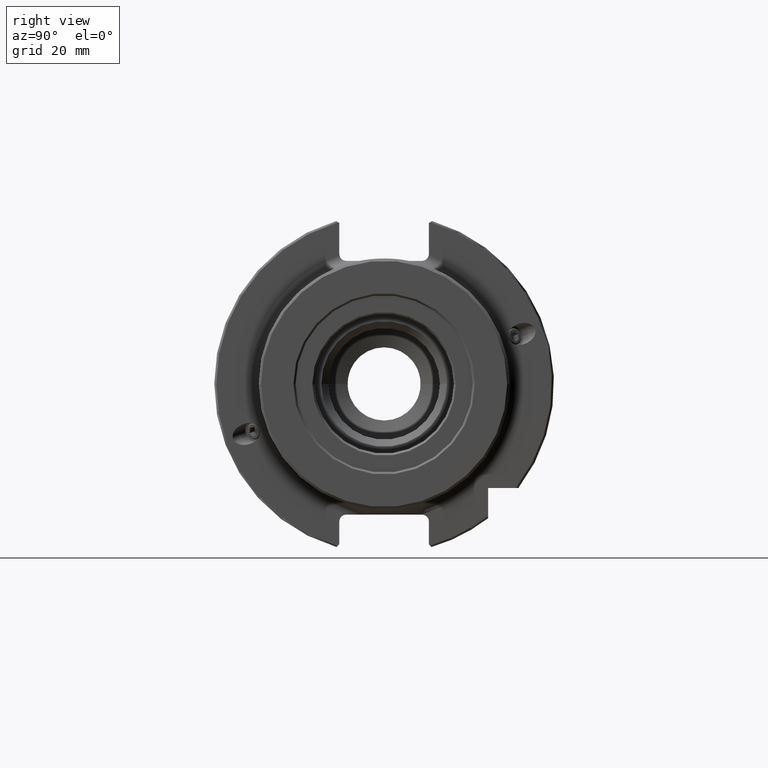
[diagram: clean part render]
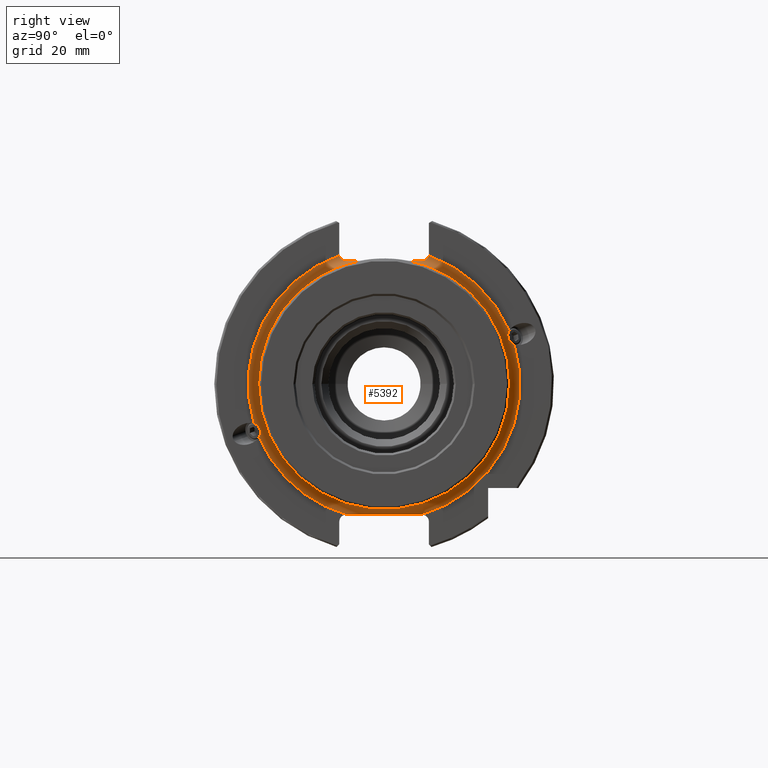
[diagram: same view with one face highlighted and labeled with its STEP entity id]
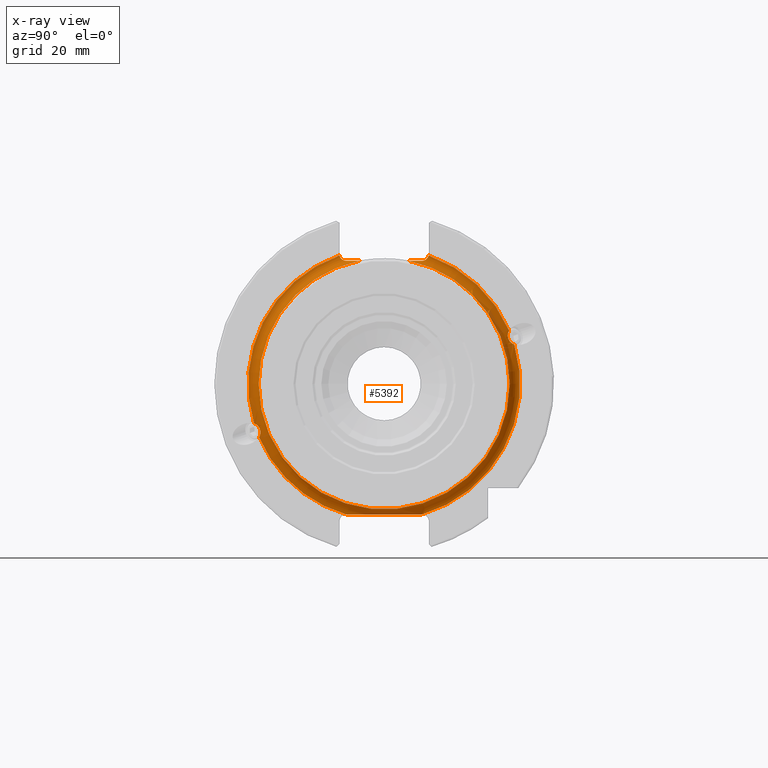
[diagram: x-ray of the same camera — body ghosted, the highlighted face saturated]
A machine part, right view. The second image highlights one B-rep face of the part: STEP entity #5392.
The next image is the same camera in x-ray: the body ghosted, the highlighted face saturated — about 1% of this face is hidden behind the body in this view.
In plain terms, the highlighted toroidal blend (fillet) surface has major radius 39 mm and minor (blend) radius 3 mm.
Its self-contained STEP definition (entity closure, byte-faithful):
#36 = CARTESIAN_POINT ( 'NONE',  ( 22.05000000000000100, 7.064700984471947700, 35.29999999999999700 ) ) ;
#76 = CARTESIAN_POINT ( 'NONE',  ( 19.73104515570625500, 11.26873355218405600, 35.33723913583112600 ) ) ;
#119 = CIRCLE ( 'NONE', #1791, 35.99999999999998600 ) ;
#121 = CARTESIAN_POINT ( 'NONE',  ( 20.70877451986343200, 8.527856312091849100, 35.30000000000000400 ) ) ;
#169 = B_SPLINE_CURVE_WITH_KNOTS ( 'NONE', 3,
 ( #2312, #2337, #3046, #3111, #3170, #3236, #3675, #3733 ),
 .UNSPECIFIED., .F., .F.,
 ( 4, 2, 2, 4 ),
 ( 0.004881689814101739000, 0.005705506230017594300, 0.006117414437975518500, 0.006529322645933443600 ),
 .UNSPECIFIED. ) ;
#186 = CARTESIAN_POINT ( 'NONE',  ( 19.45130184213126900, -0.9339176869112317800, -37.50000000000000700 ) ) ;
#200 = CARTESIAN_POINT ( 'NONE',  ( 20.79012697256431300, 8.358262810116770000, 35.30000000000000400 ) ) ;
#241 = CARTESIAN_POINT ( 'NONE',  ( 20.48017771203776900, -9.040050171712595200, 35.30000000000000400 ) ) ;
#254 = CARTESIAN_POINT ( 'NONE',  ( 19.20653572041700500, 35.48227234995950900, 13.72309931540323700 ) ) ;
#268 = CIRCLE ( 'NONE', #1016, 38.99999999999998600 ) ;
#279 = CARTESIAN_POINT ( 'NONE',  ( 19.12650571033160000, -36.46415845536999000, -11.78726292775055700 ) ) ;
#281 = CARTESIAN_POINT ( 'NONE',  ( 20.96713327598625300, 8.026181348234953100, 35.29999999999999000 ) ) ;
#333 = CIRCLE ( 'NONE', #967, 38.99999999999998600 ) ;
#360 = CARTESIAN_POINT ( 'NONE',  ( 21.06286635511410700, 7.863121613331336400, 35.29999999999999700 ) ) ;
#365 = EDGE_CURVE ( 'NONE', #4197, #565, #268, .T. ) ;
#376 = ORIENTED_EDGE ( 'NONE', *, *, #5620, .F. ) ;
#378 = ORIENTED_EDGE ( 'NONE', *, *, #2847, .F. ) ;
#445 = ORIENTED_EDGE ( 'NONE', *, *, #724, .T. ) ;
#453 = CARTESIAN_POINT ( 'NONE',  ( 19.21902509310479700, 35.49360583889371400, 13.59085756760403500 ) ) ;
#460 = CARTESIAN_POINT ( 'NONE',  ( 19.19369362144939500, -12.37965694284397100, 36.00757904782580700 ) ) ;
#477 = CARTESIAN_POINT ( 'NONE',  ( 21.27691291971389000, 7.555264025089662100, 35.29999999999999000 ) ) ;
#495 = CARTESIAN_POINT ( 'NONE',  ( 19.26809933868107500, -12.22449439711354600, 35.84461297807070000 ) ) ;
#511 = EDGE_CURVE ( 'NONE', #1029, #5366, #4833, .T. ) ;
#560 = DIRECTION ( 'NONE',  ( -1.000000000000000000, -0.0000000000000000000, -0.0000000000000000000 ) ) ;
#561 = CARTESIAN_POINT ( 'NONE',  ( 19.88783453235046000, 10.81760293671390200, 35.29999999999999700 ) ) ;
#565 = VERTEX_POINT ( 'NONE', #3123 ) ;
#576 = EDGE_CURVE ( 'NONE', #2656, #2056, #3546, .T. ) ;
#585 = ORIENTED_EDGE ( 'NONE', *, *, #5575, .T. ) ;
#594 = CARTESIAN_POINT ( 'NONE',  ( 19.05000000000000100, -35.87593687478239000, -15.29435037380234900 ) ) ;
#626 = EDGE_CURVE ( 'NONE', #1824, #5633, #3862, .T. ) ;
#663 = ORIENTED_EDGE ( 'NONE', *, *, #576, .F. ) ;
#665 = ORIENTED_EDGE ( 'NONE', *, *, #1748, .F. ) ;
#671 = EDGE_CURVE ( 'NONE', #1978, #4197, #4786, .T. ) ;
#672 = CARTESIAN_POINT ( 'NONE',  ( 19.45105095950258800, 0.4041172251513667800, -37.49999999999998600 ) ) ;
#680 = CARTESIAN_POINT ( 'NONE',  ( 21.39578396129689600, 7.407241288266126500, 35.29999999999999700 ) ) ;
#688 = B_SPLINE_CURVE_WITH_KNOTS ( 'NONE', 3,
 ( #4353, #3891, #5290, #2483, #5712, #2927, #186, #3400, #672, #3903, #1136, #4375, #1593, #4873, #2054, #5306, #2504, #5726 ),
 .UNSPECIFIED., .F., .F.,
 ( 4, 2, 2, 2, 2, 2, 2, 2, 4 ),
 ( 0.06984173313334871000, 0.07522436882890630400, 0.07791568667668510900, 0.08060700452446389900, 0.08127983398640860300, 0.08195266344835330800, 0.08329832237224270300, 0.08598964022002150700, 0.09137227591557910100 ),
 .UNSPECIFIED. ) ;
#690 = CARTESIAN_POINT ( 'NONE',  ( 19.22908211948982400, 35.51479058266797800, 13.45767727296872700 ) ) ;
#719 = CARTESIAN_POINT ( 'NONE',  ( 19.07914593173902400, -12.64522813871774100, 36.38791833077936400 ) ) ;
#722 = CARTESIAN_POINT ( 'NONE',  ( 20.10004905220087300, -10.10006057303305100, 35.29999999999999700 ) ) ;
#724 = EDGE_CURVE ( 'NONE', #5715, #5060, #779, .T. ) ;
#731 = CARTESIAN_POINT ( 'NONE',  ( 19.24211793496912300, 35.57453100629999200, 13.19775849675452600 ) ) ;
#762 = CARTESIAN_POINT ( 'NONE',  ( 19.16091023332267800, -12.45109332957254700, 36.09641272978856800 ) ) ;
#766 = CARTESIAN_POINT ( 'NONE',  ( 19.07884987638873800, -36.80160597479515900, -11.55506005272228400 ) ) ;
#779 = B_SPLINE_CURVE_WITH_KNOTS ( 'NONE', 3,
 ( #4467, #3974, #5034, #4177, #1307, #2568, #495, #460, #762, #719, #2322, #787 ),
 .UNSPECIFIED., .F., .F.,
 ( 4, 2, 2, 2, 2, 4 ),
 ( 3.642919299551294900E-017, 0.0007091191268146065800, 0.001418238253629176700, 0.001772797817036456300, 0.002127357380443735400, 0.002836476507258310100 ),
 .UNSPECIFIED. ) ;
#787 = CARTESIAN_POINT ( 'NONE',  ( 19.05000000000000100, -12.79657976287572100, 36.84084073921710000 ) ) ;
#808 = ORIENTED_EDGE ( 'NONE', *, *, #1934, .F. ) ;
#809 = CARTESIAN_POINT ( 'NONE',  ( 21.85930775724538200, 7.089368932546748600, 35.30000000000000400 ) ) ;
#871 = CARTESIAN_POINT ( 'NONE',  ( 21.68774402808491800, 7.169575499146632500, 35.29999999999999700 ) ) ;
#884 = ORIENTED_EDGE ( 'NONE', *, *, #511, .T. ) ;
#915 = VERTEX_POINT ( 'NONE', #2500 ) ;
#933 = CARTESIAN_POINT ( 'NONE',  ( 21.61097171438339600, 7.223281424933762000, 35.29999999999999700 ) ) ;
#947 = CARTESIAN_POINT ( 'NONE',  ( 19.24518695373853900, 35.61297470631770100, 13.07060203798073100 ) ) ;
#957 = CARTESIAN_POINT ( 'NONE',  ( 21.95413246252043000, 7.064700984471967300, 35.30000000000000400 ) ) ;
#964 = ORIENTED_EDGE ( 'NONE', *, *, #5154, .T. ) ;
#967 = AXIS2_PLACEMENT_3D ( 'NONE', #4955, #4754, #4616 ) ;
#978 = CARTESIAN_POINT ( 'NONE',  ( 19.05000000000000800, 12.76901307554162700, 36.72397332462423200 ) ) ;
#990 = EDGE_CURVE ( 'NONE', #1928, #1978, #169, .T. ) ;
#1016 = AXIS2_PLACEMENT_3D ( 'NONE', #3980, #4020, #4061 ) ;
#1023 = ORIENTED_EDGE ( 'NONE', *, *, #2503, .F. ) ;
#1029 = VERTEX_POINT ( 'NONE', #5080 ) ;
#1060 = CARTESIAN_POINT ( 'NONE',  ( 19.07539774151642900, -35.61613622000696500, -14.82655362190120800 ) ) ;
#1100 = ORIENTED_EDGE ( 'NONE', *, *, #990, .F. ) ;
#1113 = VERTEX_POINT ( 'NONE', #1138 ) ;
#1115 = B_SPLINE_CURVE_WITH_KNOTS ( 'NONE', 3,
 ( #5601, #978, #1457, #4739, #1939, #5195, #2385, #5613, #2828, #76, #3293, #561 ),
 .UNSPECIFIED., .F., .F.,
 ( 4, 2, 2, 2, 2, 4 ),
 ( 0.0000000000000000000, 0.0003546145948412334600, 0.0007092291896824669100, 0.001418458379364922300, 0.002127687569047377400, 0.002836916758729832500 ),
 .UNSPECIFIED. ) ;
#1120 = CARTESIAN_POINT ( 'NONE',  ( 19.24351087344459500, 35.75321881653679400, 12.69726722631182100 ) ) ;
#1136 = CARTESIAN_POINT ( 'NONE',  ( 19.44342164824842500, 1.077125088991923300, -37.50000000000000000 ) ) ;
#1138 = CARTESIAN_POINT ( 'NONE',  ( 19.05000000000000100, -37.31358100309894600, -11.34445559404116300 ) ) ;
#1162 = CARTESIAN_POINT ( 'NONE',  ( 21.86067789450798300, -7.088921904076489300, 35.30000000000000400 ) ) ;
#1163 = ORIENTED_EDGE ( 'NONE', *, *, #671, .F. ) ;
#1184 = CARTESIAN_POINT ( 'NONE',  ( 19.88783453235048900, -10.81760293671376500, 35.29999999999999700 ) ) ;
#1219 = CARTESIAN_POINT ( 'NONE',  ( 19.05000000000000100, -37.18088058982444000, -11.38308572813018500 ) ) ;
#1229 = ORIENTED_EDGE ( 'NONE', *, *, #365, .F. ) ;
#1231 = CARTESIAN_POINT ( 'NONE',  ( 19.07694717281721000, 36.81950383623782800, 11.54537141067427100 ) ) ;
#1253 = EDGE_LOOP ( 'NONE', ( #1518, #1510, #1438, #1229, #1163, #1100, #1023, #964, #884, #808, #665, #663, #585, #445, #378, #376 ) ) ;
#1290 = CARTESIAN_POINT ( 'NONE',  ( 22.05000000000000100, 4.712618113828424800E-015, 0.0000000000000000000 ) ) ;
#1307 = CARTESIAN_POINT ( 'NONE',  ( 19.44351105154462200, -11.87392409409057900, 35.57168951987105000 ) ) ;
#1312 = DIRECTION ( 'NONE',  ( 1.000000000000000000, 0.0000000000000000000, 0.0000000000000000000 ) ) ;
#1317 = CARTESIAN_POINT ( 'NONE',  ( 22.05000000000000100, -7.064700984471945900, 35.29999999999999700 ) ) ;
#1342 = DIRECTION ( 'NONE',  ( 0.0000000000000000000, 0.0000000000000000000, 1.000000000000000000 ) ) ;
#1376 = CARTESIAN_POINT ( 'NONE',  ( 22.05000000000000100, 7.064700984471947700, 35.29999999999999700 ) ) ;
#1438 = ORIENTED_EDGE ( 'NONE', *, *, #4808, .T. ) ;
#1457 = CARTESIAN_POINT ( 'NONE',  ( 19.05710619505162400, 12.73154160218760600, 36.61180160062496500 ) ) ;
#1509 = CARTESIAN_POINT ( 'NONE',  ( 19.17439836698400800, -35.46098004501563800, -14.04681159862118600 ) ) ;
#1510 = ORIENTED_EDGE ( 'NONE', *, *, #626, .F. ) ;
#1518 = ORIENTED_EDGE ( 'NONE', *, *, #5937, .F. ) ;
#1593 = CARTESIAN_POINT ( 'NONE',  ( 19.41701335191201500, 2.198297997430140400, -37.50000000000000000 ) ) ;
#1624 = CARTESIAN_POINT ( 'NONE',  ( 21.61021244276981400, -7.223825582086962300, 35.29999999999999700 ) ) ;
#1748 = EDGE_CURVE ( 'NONE', #2056, #915, #119, .T. ) ;
#1791 = AXIS2_PLACEMENT_3D ( 'NONE', #1290, #1312, #1342 ) ;
#1824 = VERTEX_POINT ( 'NONE', #1971 ) ;
#1854 = CARTESIAN_POINT ( 'NONE',  ( 19.05000000000000100, 37.18580401552078000, 11.38165248018344800 ) ) ;
#1908 = CARTESIAN_POINT ( 'NONE',  ( 20.09959496967313800, 10.10152519376815100, 35.29999999999999700 ) ) ;
#1928 = VERTEX_POINT ( 'NONE', #3334 ) ;
#1934 = EDGE_CURVE ( 'NONE', #915, #5366, #3575, .T. ) ;
#1939 = CARTESIAN_POINT ( 'NONE',  ( 19.10617243935476500, 12.58113869700122200, 36.29191703427992600 ) ) ;
#1971 = CARTESIAN_POINT ( 'NONE',  ( 19.05000000000000100, -10.71214264281422100, -37.50000000000000000 ) ) ;
#1978 = VERTEX_POINT ( 'NONE', #4204 ) ;
#1984 = CARTESIAN_POINT ( 'NONE',  ( 19.24356331029245100, -35.55066600577165300, -13.25340149865321500 ) ) ;
#2050 = AXIS2_PLACEMENT_3D ( 'NONE', #4228, #560, #3793 ) ;
#2054 = CARTESIAN_POINT ( 'NONE',  ( 19.31879237005500700, 4.438963083077006800, -37.50000000000000000 ) ) ;
#2056 = VERTEX_POINT ( 'NONE', #4977 ) ;
#2073 = CARTESIAN_POINT ( 'NONE',  ( 19.05000000000000100, 37.31358100309902400, 11.34445559404095900 ) ) ;
#2085 = CARTESIAN_POINT ( 'NONE',  ( 21.27527888735019000, -7.557274927159396900, 35.29999999999999700 ) ) ;
#2144 = CARTESIAN_POINT ( 'NONE',  ( 19.05000000000000100, -35.87593687478239000, -15.29435037380234900 ) ) ;
#2307 = CARTESIAN_POINT ( 'NONE',  ( 19.05000000000000100, -12.79657976287572100, 36.84084073921710000 ) ) ;
#2312 = CARTESIAN_POINT ( 'NONE',  ( 19.05000000000000100, 35.87593687478252500, 15.29435037380205400 ) ) ;
#2322 = CARTESIAN_POINT ( 'NONE',  ( 19.04999999999999700, -12.74136504799351900, 36.60676107278635500 ) ) ;
#2328 = CARTESIAN_POINT ( 'NONE',  ( 19.05000000000000100, 4.712618113828424800E-015, 0.0000000000000000000 ) ) ;
#2337 = CARTESIAN_POINT ( 'NONE',  ( 19.05000000000000400, 35.72324034002630800, 15.06599047486589700 ) ) ;
#2371 = DIRECTION ( 'NONE',  ( 0.0000000000000000000, 0.0000000000000000000, 1.000000000000000000 ) ) ;
#2379 = CARTESIAN_POINT ( 'NONE',  ( 19.20653572041935300, -36.00203576934517700, -12.29506105716352800 ) ) ;
#2382 = DIRECTION ( 'NONE',  ( -1.000000000000000000, -0.0000000000000000000, -0.0000000000000000000 ) ) ;
#2385 = CARTESIAN_POINT ( 'NONE',  ( 19.26513245782214400, 12.22976790179381000, 35.83723293572755600 ) ) ;
#2431 = CARTESIAN_POINT ( 'NONE',  ( 19.23134636953529200, -35.85042018853182100, -12.51077571920713500 ) ) ;
#2483 = CARTESIAN_POINT ( 'NONE',  ( 19.31597948993200100, -4.489837205777254400, -37.50000000000000000 ) ) ;
#2500 = CARTESIAN_POINT ( 'NONE',  ( 22.05000000000000100, 35.99999999999999300, 0.0000000000000000000 ) ) ;
#2503 = EDGE_CURVE ( 'NONE', #2560, #1928, #5860, .T. ) ;
#2504 = CARTESIAN_POINT ( 'NONE',  ( 19.05000000000000400, 8.917742578258424800, -37.50000000000001400 ) ) ;
#2533 = CARTESIAN_POINT ( 'NONE',  ( 20.96576388616661600, -8.028652497731039600, 35.29999999999999700 ) ) ;
#2560 = VERTEX_POINT ( 'NONE', #3669 ) ;
#2568 = CARTESIAN_POINT ( 'NONE',  ( 19.31014362462935100, -12.13996195261892000, 35.76994747475323100 ) ) ;
#2656 = VERTEX_POINT ( 'NONE', #1317 ) ;
#2828 = CARTESIAN_POINT ( 'NONE',  ( 19.54195193534343400, 11.68081508412594400, 35.47292394063466500 ) ) ;
#2847 = EDGE_CURVE ( 'NONE', #1113, #5060, #333, .T. ) ;
#2927 = CARTESIAN_POINT ( 'NONE',  ( 19.43168326377449200, -1.823167389604359000, -37.50000000000000000 ) ) ;
#2959 = B_SPLINE_CURVE_WITH_KNOTS ( 'NONE', 3,
 ( #3932, #3435, #1162, #4408, #1624, #4897, #2085, #5341, #2533, #5750, #2975, #241, #3455, #722, #3957, #1184 ),
 .UNSPECIFIED., .F., .F.,
 ( 4, 2, 2, 2, 2, 2, 2, 4 ),
 ( 0.02890446490870409600, 0.02918338306207835300, 0.02946230121545261000, 0.03002013752220112500, 0.03057797382894963900, 0.03113581013569815400, 0.03225148274919518300, 0.03336715536269221200 ),
 .UNSPECIFIED. ) ;
#2975 = CARTESIAN_POINT ( 'NONE',  ( 20.70909718134496600, -8.527214846844794100, 35.29999999999999700 ) ) ;
#3017 = CARTESIAN_POINT ( 'NONE',  ( 19.14446382326842800, -36.35943888002288600, -11.87888942875395400 ) ) ;
#3024 = CARTESIAN_POINT ( 'NONE',  ( 19.09100007771082000, 36.70629015434208500, 11.61246337358449100 ) ) ;
#3046 = CARTESIAN_POINT ( 'NONE',  ( 19.07732314850978400, 35.60800206745044200, 14.80822727855991700 ) ) ;
#3111 = CARTESIAN_POINT ( 'NONE',  ( 19.12651302069177500, 35.50983996911855200, 14.40907207460345600 ) ) ;
#3123 = CARTESIAN_POINT ( 'NONE',  ( 19.05000000000000100, 10.71214264281423200, -37.50000000000000000 ) ) ;
#3170 = CARTESIAN_POINT ( 'NONE',  ( 19.14445383619937500, 35.48857297865868100, 14.27170594377830400 ) ) ;
#3236 = CARTESIAN_POINT ( 'NONE',  ( 19.17799371908275700, 35.46905447338968300, 13.99722300907291100 ) ) ;
#3293 = CARTESIAN_POINT ( 'NONE',  ( 19.82279896000449400, 11.04837291280138900, 35.29999999999999000 ) ) ;
#3321 = CARTESIAN_POINT ( 'NONE',  ( 19.05000000000000100, -35.72876369488533000, -15.07425073276551200 ) ) ;
#3334 = CARTESIAN_POINT ( 'NONE',  ( 19.05000000000000100, 35.87593687478252500, 15.29435037380205400 ) ) ;
#3400 = CARTESIAN_POINT ( 'NONE',  ( 19.45206038543434000, 0.1780956272296395400, -37.49999999999999300 ) ) ;
#3435 = CARTESIAN_POINT ( 'NONE',  ( 21.95456912785968500, -7.064700984472001000, 35.30000000000000400 ) ) ;
#3455 = CARTESIAN_POINT ( 'NONE',  ( 20.34547096287003500, -9.391859453161194100, 35.29999999999999700 ) ) ;
#3498 = CARTESIAN_POINT ( 'NONE',  ( 19.09378859890480500, -36.68478287443759500, -11.62584951962497100 ) ) ;
#3546 = CIRCLE ( 'NONE', #5152, 35.99999999999998600 ) ;
#3575 = CIRCLE ( 'NONE', #3976, 35.99999999999998600 ) ;
#3669 = CARTESIAN_POINT ( 'NONE',  ( 19.05000000000000100, 12.79657976287572300, 36.84084073921710700 ) ) ;
#3675 = CARTESIAN_POINT ( 'NONE',  ( 19.19359111336048700, 35.47052575831718700, 13.86016124033098700 ) ) ;
#3733 = CARTESIAN_POINT ( 'NONE',  ( 19.20653572041700500, 35.48227234995950900, 13.72309931540323700 ) ) ;
#3735 = CARTESIAN_POINT ( 'NONE',  ( 19.05638438689702200, 37.05884264022387200, 11.42995160994179200 ) ) ;
#3793 = DIRECTION ( 'NONE',  ( 0.0000000000000000000, 0.0000000000000000000, 1.000000000000000000 ) ) ;
#3861 = CARTESIAN_POINT ( 'NONE',  ( 22.05000000000000100, 4.712618113828424800E-015, 0.0000000000000000000 ) ) ;
#3862 = CIRCLE ( 'NONE', #5436, 38.99999999999998600 ) ;
#3882 = DIRECTION ( 'NONE',  ( 1.000000000000000000, 0.0000000000000000000, 0.0000000000000000000 ) ) ;
#3891 = CARTESIAN_POINT ( 'NONE',  ( 19.04999999999999700, -8.932898297996617400, -37.50000000000000700 ) ) ;
#3903 = CARTESIAN_POINT ( 'NONE',  ( 19.44673027951020600, 0.8528174718589248700, -37.50000000000000000 ) ) ;
#3932 = CARTESIAN_POINT ( 'NONE',  ( 22.05000000000000100, -7.064700984471945900, 35.29999999999999700 ) ) ;
#3934 = DIRECTION ( 'NONE',  ( 0.0000000000000000000, 8.881784197001252300E-016, 1.000000000000000000 ) ) ;
#3957 = CARTESIAN_POINT ( 'NONE',  ( 19.98931053924371100, -10.45752898273005400, 35.29999999999999700 ) ) ;
#3974 = CARTESIAN_POINT ( 'NONE',  ( 19.82261630018785300, -11.04902105658002600, 35.29999999999999000 ) ) ;
#3976 = AXIS2_PLACEMENT_3D ( 'NONE', #3861, #3882, #3934 ) ;
#3980 = CARTESIAN_POINT ( 'NONE',  ( 19.05000000000000100, 4.712618113828424800E-015, 0.0000000000000000000 ) ) ;
#4000 = CARTESIAN_POINT ( 'NONE',  ( 19.05689229728001900, -37.04913195041271500, -11.43368856763145800 ) ) ;
#4020 = DIRECTION ( 'NONE',  ( -1.000000000000000000, -0.0000000000000000000, -0.0000000000000000000 ) ) ;
#4061 = DIRECTION ( 'NONE',  ( 0.0000000000000000000, 0.0000000000000000000, 1.000000000000000000 ) ) ;
#4177 = CARTESIAN_POINT ( 'NONE',  ( 19.54199452143897600, -11.68086756335585700, 35.47271126203463600 ) ) ;
#4197 = VERTEX_POINT ( 'NONE', #4263 ) ;
#4204 = CARTESIAN_POINT ( 'NONE',  ( 19.20653572041700500, 35.48227234995950900, 13.72309931540323700 ) ) ;
#4211 = VERTEX_POINT ( 'NONE', #2379 ) ;
#4228 = CARTESIAN_POINT ( 'NONE',  ( 22.05000000000000100, 4.712618113828424800E-015, 0.0000000000000000000 ) ) ;
#4263 = CARTESIAN_POINT ( 'NONE',  ( 19.05000000000000100, 37.31358100309902400, 11.34445559404095900 ) ) ;
#4301 = CARTESIAN_POINT ( 'NONE',  ( 19.13776464606757700, -35.48355027640185000, -14.31534851228180600 ) ) ;
#4353 = CARTESIAN_POINT ( 'NONE',  ( 19.05000000000000100, -10.71214264281422100, -37.50000000000000000 ) ) ;
#4375 = CARTESIAN_POINT ( 'NONE',  ( 19.43021767776914600, 1.749926596045797300, -37.50000000000000000 ) ) ;
#4408 = CARTESIAN_POINT ( 'NONE',  ( 21.68904388771812500, -7.168777283011849000, 35.29999999999999700 ) ) ;
#4447 = CARTESIAN_POINT ( 'NONE',  ( 19.19363897809000700, -36.08084656827788500, -12.18293112456720600 ) ) ;
#4467 = CARTESIAN_POINT ( 'NONE',  ( 19.88783453235048900, -10.81760293671376500, 35.29999999999999700 ) ) ;
#4471 = CARTESIAN_POINT ( 'NONE',  ( 19.05000000000000100, -37.31358100309894600, -11.34445559404116300 ) ) ;
#4518 = CARTESIAN_POINT ( 'NONE',  ( 19.98909749593488900, 10.45828493824037700, 35.29999999999999700 ) ) ;
#4584 = DIRECTION ( 'NONE',  ( 0.0000000000000000000, 0.0000000000000000000, 1.000000000000000000 ) ) ;
#4606 = DIRECTION ( 'NONE',  ( -1.000000000000000000, -0.0000000000000000000, -0.0000000000000000000 ) ) ;
#4616 = DIRECTION ( 'NONE',  ( 0.0000000000000000000, 0.0000000000000000000, 1.000000000000000000 ) ) ;
#4709 = FACE_OUTER_BOUND ( 'NONE', #1253, .T. ) ;
#4739 = CARTESIAN_POINT ( 'NONE',  ( 19.08500852138979900, 12.63801231855548000, 36.39630723664841800 ) ) ;
#4754 = DIRECTION ( 'NONE',  ( -1.000000000000000000, -0.0000000000000000000, -0.0000000000000000000 ) ) ;
#4786 = B_SPLINE_CURVE_WITH_KNOTS ( 'NONE', 3,
 ( #254, #453, #690, #731, #947, #1120, #5102, #5377, #5420, #3024, #1231, #3735, #1854, #2073 ),
 .UNSPECIFIED., .F., .F.,
 ( 4, 2, 2, 2, 2, 2, 4 ),
 ( 0.006529322645933443600, 0.006926744916063616800, 0.007324167186193790800, 0.008119011726454131900, 0.008913856266714474700, 0.009311278536844637400, 0.009708700806974800100 ),
 .UNSPECIFIED. ) ;
#4791 = CARTESIAN_POINT ( 'NONE',  ( 19.22711509306871800, -35.49467100663490300, -13.51837634156816600 ) ) ;
#4808 = EDGE_CURVE ( 'NONE', #1824, #565, #688, .T. ) ;
#4833 = B_SPLINE_CURVE_WITH_KNOTS ( 'NONE', 3,
 ( #5355, #4518, #1908, #5876, #5542, #121, #200, #281, #360, #477, #680, #933, #871, #809, #957, #1376 ),
 .UNSPECIFIED., .F., .F.,
 ( 4, 2, 2, 2, 2, 2, 2, 4 ),
 ( 0.03176180481099170900, 0.03290130352692194300, 0.03404080224285217800, 0.03461055160081728800, 0.03518030095878240500, 0.03575005031674752300, 0.03603492499573007100, 0.03631979967471262600 ),
 .UNSPECIFIED. ) ;
#4871 = CARTESIAN_POINT ( 'NONE',  ( 19.05000000000000100, 4.712618113828424800E-015, 0.0000000000000000000 ) ) ;
#4873 = CARTESIAN_POINT ( 'NONE',  ( 19.36675518675776100, 3.543018149388270600, -37.50000000000000700 ) ) ;
#4897 = CARTESIAN_POINT ( 'NONE',  ( 21.39459416733202700, -7.408470268777788800, 35.29999999999999700 ) ) ;
#4955 = CARTESIAN_POINT ( 'NONE',  ( 19.05000000000000100, 4.712618113828424800E-015, 0.0000000000000000000 ) ) ;
#4977 = CARTESIAN_POINT ( 'NONE',  ( 22.05000000000000100, -35.99999999999997900, 4.408728476930469300E-015 ) ) ;
#5034 = CARTESIAN_POINT ( 'NONE',  ( 19.73281003910013400, -11.26474076240732100, 35.33615658888206900 ) ) ;
#5060 = VERTEX_POINT ( 'NONE', #2307 ) ;
#5080 = CARTESIAN_POINT ( 'NONE',  ( 19.88783453235046000, 10.81760293671390200, 35.29999999999999700 ) ) ;
#5087 = CARTESIAN_POINT ( 'NONE',  ( 19.88783453235048900, -10.81760293671376500, 35.29999999999999700 ) ) ;
#5102 = CARTESIAN_POINT ( 'NONE',  ( 19.22691168526095500, 35.88123088648414700, 12.45788650827333800 ) ) ;
#5152 = AXIS2_PLACEMENT_3D ( 'NONE', #5488, #5577, #5590 ) ;
#5154 = EDGE_CURVE ( 'NONE', #2560, #1029, #1115, .T. ) ;
#5195 = CARTESIAN_POINT ( 'NONE',  ( 19.18709100009842300, 12.38877360116240200, 36.00237624017324100 ) ) ;
#5248 = CARTESIAN_POINT ( 'NONE',  ( 19.24570356783637200, -35.72729419263970400, -12.75281854619349700 ) ) ;
#5290 = CARTESIAN_POINT ( 'NONE',  ( 19.16425120523459600, -7.155823076402653800, -37.50000000000000000 ) ) ;
#5306 = CARTESIAN_POINT ( 'NONE',  ( 19.16608088614560400, 7.126471282492707000, -37.50000000000000000 ) ) ;
#5341 = CARTESIAN_POINT ( 'NONE',  ( 21.06033793723075900, -7.867104089855921200, 35.30000000000000400 ) ) ;
#5355 = CARTESIAN_POINT ( 'NONE',  ( 19.88783453235046000, 10.81760293671390200, 35.29999999999999700 ) ) ;
#5366 = VERTEX_POINT ( 'NONE', #36 ) ;
#5369 = CARTESIAN_POINT ( 'NONE',  ( 19.20653572041935300, -36.00203576934517700, -12.29506105716352800 ) ) ;
#5377 = CARTESIAN_POINT ( 'NONE',  ( 19.17433647361140800, 36.19409171343074400, 12.03322322901731300 ) ) ;
#5392 = ADVANCED_FACE ( 'NONE', ( #4709 ), #5854, .F. ) ;
#5410 = AXIS2_PLACEMENT_3D ( 'NONE', #4871, #4606, #4584 ) ;
#5420 = CARTESIAN_POINT ( 'NONE',  ( 19.13759176755978700, 36.38482594310461600, 11.84133625169069900 ) ) ;
#5436 = AXIS2_PLACEMENT_3D ( 'NONE', #2328, #2382, #2371 ) ;
#5488 = CARTESIAN_POINT ( 'NONE',  ( 22.05000000000000100, 4.712618113828424800E-015, 0.0000000000000000000 ) ) ;
#5542 = CARTESIAN_POINT ( 'NONE',  ( 20.47867822989763900, 9.043573269741980200, 35.29999999999999000 ) ) ;
#5575 = EDGE_CURVE ( 'NONE', #2656, #5715, #2959, .T. ) ;
#5577 = DIRECTION ( 'NONE',  ( 1.000000000000000000, 0.0000000000000000000, 0.0000000000000000000 ) ) ;
#5590 = DIRECTION ( 'NONE',  ( 0.0000000000000000000, 0.0000000000000000000, 1.000000000000000000 ) ) ;
#5601 = CARTESIAN_POINT ( 'NONE',  ( 19.05000000000000100, 12.79657976287572300, 36.84084073921710700 ) ) ;
#5613 = CARTESIAN_POINT ( 'NONE',  ( 19.44198662301958400, 11.87694635372499400, 35.57358612788615200 ) ) ;
#5618 = B_SPLINE_CURVE_WITH_KNOTS ( 'NONE', 3,
 ( #594, #3321, #1060, #4301, #1509, #4791, #1984, #5248, #2431, #5654 ),
 .UNSPECIFIED., .F., .F.,
 ( 4, 2, 2, 2, 4 ),
 ( 0.004881689814101714700, 0.005675707057356865200, 0.006469724300612015800, 0.007263741543867166400, 0.008057758787122316900 ),
 .UNSPECIFIED. ) ;
#5620 = EDGE_CURVE ( 'NONE', #4211, #1113, #5797, .T. ) ;
#5633 = VERTEX_POINT ( 'NONE', #2144 ) ;
#5654 = CARTESIAN_POINT ( 'NONE',  ( 19.20653572041935300, -36.00203576934517700, -12.29506105716352800 ) ) ;
#5712 = CARTESIAN_POINT ( 'NONE',  ( 19.36388396680864700, -3.601124526735245200, -37.50000000000000000 ) ) ;
#5715 = VERTEX_POINT ( 'NONE', #5087 ) ;
#5726 = CARTESIAN_POINT ( 'NONE',  ( 19.05000000000000100, 10.71214264281423200, -37.50000000000000000 ) ) ;
#5750 = CARTESIAN_POINT ( 'NONE',  ( 20.78998568264819000, -8.358626691899504000, 35.29999999999999700 ) ) ;
#5789 = CARTESIAN_POINT ( 'NONE',  ( 19.17806918441080900, -36.16768699573474100, -12.07704218016293900 ) ) ;
#5797 = B_SPLINE_CURVE_WITH_KNOTS ( 'NONE', 3,
 ( #5369, #4447, #5789, #3017, #279, #3498, #766, #4000, #1219, #4471 ),
 .UNSPECIFIED., .F., .F.,
 ( 4, 2, 2, 2, 4 ),
 ( 0.008057758787122316900, 0.008470494292085446400, 0.008883229797048575900, 0.009295965302011705400, 0.009708700806974834800 ),
 .UNSPECIFIED. ) ;
#5854 = TOROIDAL_SURFACE ( 'NONE', #2050, 38.99999999999998600, 3.000000000000000000 ) ;
#5860 = CIRCLE ( 'NONE', #5410, 38.99999999999998600 ) ;
#5876 = CARTESIAN_POINT ( 'NONE',  ( 20.34446154200737300, 9.394618906692837600, 35.29999999999999000 ) ) ;
#5937 = EDGE_CURVE ( 'NONE', #5633, #4211, #5618, .T. ) ;